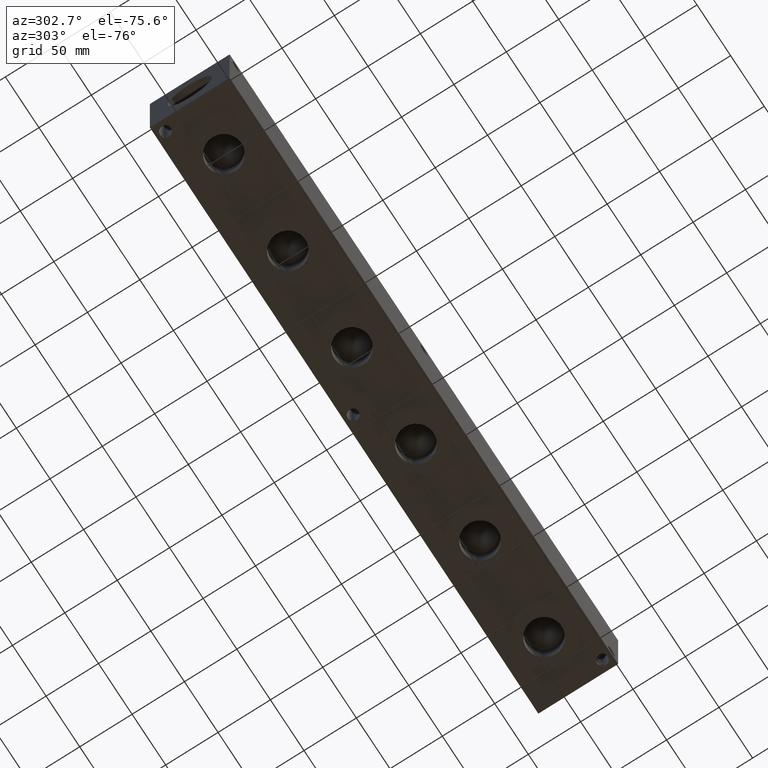
[diagram: clean part render]
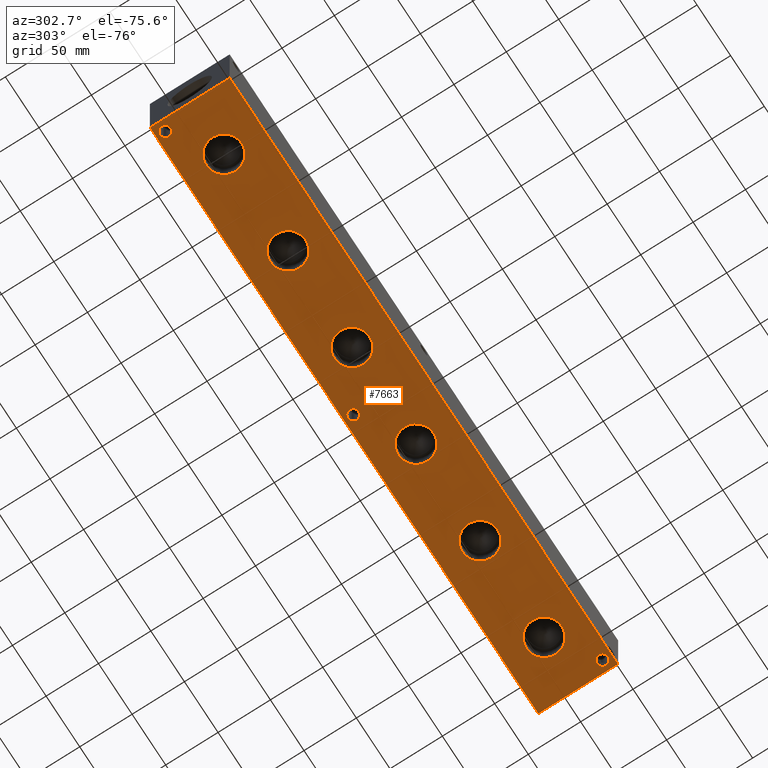
[diagram: same view with one face highlighted and labeled with its STEP entity id]
A machine part, auxiliary view. The second image highlights one B-rep face of the part: STEP entity #7663.
In plain terms, the highlighted planar face has unit normal (0, 0, 1).
Its self-contained STEP definition (entity closure, byte-faithful):
#107=CIRCLE('',#7943,5.1562);
#108=CIRCLE('',#7945,5.1562);
#109=CIRCLE('',#7947,5.1562);
#115=CIRCLE('',#7956,16.8529);
#116=CIRCLE('',#7957,16.8529);
#122=CIRCLE('',#7967,16.8529);
#123=CIRCLE('',#7968,16.8529);
#129=CIRCLE('',#7978,16.8529);
#130=CIRCLE('',#7979,16.8529);
#136=CIRCLE('',#7989,16.8529);
#137=CIRCLE('',#7990,16.8529);
#143=CIRCLE('',#8000,16.8529);
#144=CIRCLE('',#8001,16.8529);
#150=CIRCLE('',#8011,16.8529);
#151=CIRCLE('',#8012,16.8529);
#256=FACE_BOUND('',#1339,.T.);
#257=FACE_BOUND('',#1340,.T.);
#258=FACE_BOUND('',#1341,.T.);
#259=FACE_BOUND('',#1342,.T.);
#260=FACE_BOUND('',#1343,.T.);
#261=FACE_BOUND('',#1344,.T.);
#262=FACE_BOUND('',#1345,.T.);
#263=FACE_BOUND('',#1346,.T.);
#264=FACE_BOUND('',#1347,.T.);
#500=PLANE('',#8095);
#889=FACE_OUTER_BOUND('',#1338,.T.);
#1338=EDGE_LOOP('',(#6851,#6852,#6853,#6854));
#1339=EDGE_LOOP('',(#6855));
#1340=EDGE_LOOP('',(#6856));
#1341=EDGE_LOOP('',(#6857));
#1342=EDGE_LOOP('',(#6858,#6859));
#1343=EDGE_LOOP('',(#6860,#6861));
#1344=EDGE_LOOP('',(#6862,#6863));
#1345=EDGE_LOOP('',(#6864,#6865));
#1346=EDGE_LOOP('',(#6866,#6867));
#1347=EDGE_LOOP('',(#6868,#6869));
#2066=LINE('',#13090,#2792);
#2069=LINE('',#13095,#2795);
#2071=LINE('',#13099,#2797);
#2073=LINE('',#13102,#2799);
#2792=VECTOR('',#9642,10.);
#2795=VECTOR('',#9647,10.);
#2797=VECTOR('',#9651,10.);
#2799=VECTOR('',#9655,10.);
#3607=VERTEX_POINT('',#12792);
#3608=VERTEX_POINT('',#12796);
#3609=VERTEX_POINT('',#12800);
#3616=VERTEX_POINT('',#12818);
#3617=VERTEX_POINT('',#12819);
#3624=VERTEX_POINT('',#12840);
#3625=VERTEX_POINT('',#12841);
#3632=VERTEX_POINT('',#12862);
#3633=VERTEX_POINT('',#12863);
#3640=VERTEX_POINT('',#12884);
#3641=VERTEX_POINT('',#12885);
#3648=VERTEX_POINT('',#12906);
#3649=VERTEX_POINT('',#12907);
#3656=VERTEX_POINT('',#12928);
#3657=VERTEX_POINT('',#12929);
#3710=VERTEX_POINT('',#13088);
#3711=VERTEX_POINT('',#13089);
#3712=VERTEX_POINT('',#13094);
#3713=VERTEX_POINT('',#13098);
#4625=EDGE_CURVE('',#3607,#3607,#107,.T.);
#4627=EDGE_CURVE('',#3608,#3608,#108,.T.);
#4629=EDGE_CURVE('',#3609,#3609,#109,.T.);
#4636=EDGE_CURVE('',#3616,#3617,#115,.T.);
#4637=EDGE_CURVE('',#3617,#3616,#116,.T.);
#4646=EDGE_CURVE('',#3624,#3625,#122,.T.);
#4647=EDGE_CURVE('',#3625,#3624,#123,.T.);
#4656=EDGE_CURVE('',#3632,#3633,#129,.T.);
#4657=EDGE_CURVE('',#3633,#3632,#130,.T.);
#4666=EDGE_CURVE('',#3640,#3641,#136,.T.);
#4667=EDGE_CURVE('',#3641,#3640,#137,.T.);
#4676=EDGE_CURVE('',#3648,#3649,#143,.T.);
#4677=EDGE_CURVE('',#3649,#3648,#144,.T.);
#4686=EDGE_CURVE('',#3656,#3657,#150,.T.);
#4687=EDGE_CURVE('',#3657,#3656,#151,.T.);
#4758=EDGE_CURVE('',#3710,#3711,#2066,.T.);
#4761=EDGE_CURVE('',#3712,#3710,#2069,.T.);
#4763=EDGE_CURVE('',#3713,#3712,#2071,.T.);
#4765=EDGE_CURVE('',#3711,#3713,#2073,.T.);
#6851=ORIENTED_EDGE('',*,*,#4765,.F.);
#6852=ORIENTED_EDGE('',*,*,#4758,.F.);
#6853=ORIENTED_EDGE('',*,*,#4761,.F.);
#6854=ORIENTED_EDGE('',*,*,#4763,.F.);
#6855=ORIENTED_EDGE('',*,*,#4625,.T.);
#6856=ORIENTED_EDGE('',*,*,#4627,.T.);
#6857=ORIENTED_EDGE('',*,*,#4629,.T.);
#6858=ORIENTED_EDGE('',*,*,#4636,.T.);
#6859=ORIENTED_EDGE('',*,*,#4637,.T.);
#6860=ORIENTED_EDGE('',*,*,#4646,.T.);
#6861=ORIENTED_EDGE('',*,*,#4647,.T.);
#6862=ORIENTED_EDGE('',*,*,#4656,.T.);
#6863=ORIENTED_EDGE('',*,*,#4657,.T.);
#6864=ORIENTED_EDGE('',*,*,#4666,.T.);
#6865=ORIENTED_EDGE('',*,*,#4667,.T.);
#6866=ORIENTED_EDGE('',*,*,#4676,.T.);
#6867=ORIENTED_EDGE('',*,*,#4677,.T.);
#6868=ORIENTED_EDGE('',*,*,#4686,.T.);
#6869=ORIENTED_EDGE('',*,*,#4687,.T.);
#7663=ADVANCED_FACE('',(#889,#256,#257,#258,#259,#260,#261,#262,#263,#264),
#500,.F.);
#7943=AXIS2_PLACEMENT_3D('',#12794,#9302,#9303);
#7945=AXIS2_PLACEMENT_3D('',#12798,#9307,#9308);
#7947=AXIS2_PLACEMENT_3D('',#12802,#9312,#9313);
#7956=AXIS2_PLACEMENT_3D('',#12820,#9331,#9332);
#7957=AXIS2_PLACEMENT_3D('',#12821,#9333,#9334);
#7967=AXIS2_PLACEMENT_3D('',#12842,#9356,#9357);
#7968=AXIS2_PLACEMENT_3D('',#12843,#9358,#9359);
#7978=AXIS2_PLACEMENT_3D('',#12864,#9381,#9382);
#7979=AXIS2_PLACEMENT_3D('',#12865,#9383,#9384);
#7989=AXIS2_PLACEMENT_3D('',#12886,#9406,#9407);
#7990=AXIS2_PLACEMENT_3D('',#12887,#9408,#9409);
#8000=AXIS2_PLACEMENT_3D('',#12908,#9431,#9432);
#8001=AXIS2_PLACEMENT_3D('',#12909,#9433,#9434);
#8011=AXIS2_PLACEMENT_3D('',#12930,#9456,#9457);
#8012=AXIS2_PLACEMENT_3D('',#12931,#9458,#9459);
#8095=AXIS2_PLACEMENT_3D('',#13104,#9658,#9659);
#9302=DIRECTION('center_axis',(0.,0.,1.));
#9303=DIRECTION('ref_axis',(1.,0.,0.));
#9307=DIRECTION('center_axis',(0.,0.,1.));
#9308=DIRECTION('ref_axis',(1.,0.,0.));
#9312=DIRECTION('center_axis',(0.,0.,1.));
#9313=DIRECTION('ref_axis',(1.,0.,0.));
#9331=DIRECTION('center_axis',(0.,0.,1.));
#9332=DIRECTION('ref_axis',(1.,0.,0.));
#9333=DIRECTION('center_axis',(0.,0.,1.));
#9334=DIRECTION('ref_axis',(1.,0.,0.));
#9356=DIRECTION('center_axis',(0.,0.,1.));
#9357=DIRECTION('ref_axis',(1.,0.,0.));
#9358=DIRECTION('center_axis',(0.,0.,1.));
#9359=DIRECTION('ref_axis',(1.,0.,0.));
#9381=DIRECTION('center_axis',(0.,0.,1.));
#9382=DIRECTION('ref_axis',(1.,0.,0.));
#9383=DIRECTION('center_axis',(0.,0.,1.));
#9384=DIRECTION('ref_axis',(1.,0.,0.));
#9406=DIRECTION('center_axis',(0.,0.,1.));
#9407=DIRECTION('ref_axis',(1.,0.,0.));
#9408=DIRECTION('center_axis',(0.,0.,1.));
#9409=DIRECTION('ref_axis',(1.,0.,0.));
#9431=DIRECTION('center_axis',(0.,0.,1.));
#9432=DIRECTION('ref_axis',(1.,0.,0.));
#9433=DIRECTION('center_axis',(0.,0.,1.));
#9434=DIRECTION('ref_axis',(1.,0.,0.));
#9456=DIRECTION('center_axis',(0.,0.,1.));
#9457=DIRECTION('ref_axis',(1.,0.,0.));
#9458=DIRECTION('center_axis',(0.,0.,1.));
#9459=DIRECTION('ref_axis',(1.,0.,0.));
#9642=DIRECTION('',(0.,-1.,0.));
#9647=DIRECTION('',(-1.,0.,0.));
#9651=DIRECTION('',(0.,1.,0.));
#9655=DIRECTION('',(1.,0.,0.));
#9658=DIRECTION('center_axis',(0.,0.,1.));
#9659=DIRECTION('ref_axis',(1.,0.,0.));
#12792=CARTESIAN_POINT('',(563.1688,8.7376,0.));
#12794=CARTESIAN_POINT('Origin',(568.325,8.7376,0.));
#12796=CARTESIAN_POINT('',(4.3688,67.4624,0.));
#12798=CARTESIAN_POINT('Origin',(9.525,67.4624,0.));
#12800=CARTESIAN_POINT('',(283.7688,67.4624,0.));
#12802=CARTESIAN_POINT('Origin',(288.925,67.4624,0.));
#12818=CARTESIAN_POINT('',(448.6529,38.1,0.));
#12819=CARTESIAN_POINT('',(414.9471,38.1,0.));
#12820=CARTESIAN_POINT('Origin',(431.8,38.1,0.));
#12821=CARTESIAN_POINT('Origin',(431.8,38.1,0.));
#12840=CARTESIAN_POINT('',(258.1529,38.1,0.));
#12841=CARTESIAN_POINT('',(224.4471,38.1,0.));
#12842=CARTESIAN_POINT('Origin',(241.3,38.1,0.));
#12843=CARTESIAN_POINT('Origin',(241.3,38.1,0.));
#12862=CARTESIAN_POINT('',(67.6529,38.1,0.));
#12863=CARTESIAN_POINT('',(33.9471,38.1,0.));
#12864=CARTESIAN_POINT('Origin',(50.8,38.1,0.));
#12865=CARTESIAN_POINT('Origin',(50.8,38.1,0.));
#12884=CARTESIAN_POINT('',(162.9029,38.1,0.));
#12885=CARTESIAN_POINT('',(129.1971,38.1,0.));
#12886=CARTESIAN_POINT('Origin',(146.05,38.1,0.));
#12887=CARTESIAN_POINT('Origin',(146.05,38.1,0.));
#12906=CARTESIAN_POINT('',(353.4029,38.1,0.));
#12907=CARTESIAN_POINT('',(319.6971,38.1,0.));
#12908=CARTESIAN_POINT('Origin',(336.55,38.1,0.));
#12909=CARTESIAN_POINT('Origin',(336.55,38.1,0.));
#12928=CARTESIAN_POINT('',(543.9029,38.1,0.));
#12929=CARTESIAN_POINT('',(510.1971,38.1,0.));
#12930=CARTESIAN_POINT('Origin',(527.05,38.1,0.));
#12931=CARTESIAN_POINT('Origin',(527.05,38.1,0.));
#13088=CARTESIAN_POINT('',(0.,76.2,0.));
#13089=CARTESIAN_POINT('',(0.,0.,0.));
#13090=CARTESIAN_POINT('',(0.,76.2,0.));
#13094=CARTESIAN_POINT('',(577.85,76.2,0.));
#13095=CARTESIAN_POINT('',(577.85,76.2,0.));
#13098=CARTESIAN_POINT('',(577.85,0.,0.));
#13099=CARTESIAN_POINT('',(577.85,0.,0.));
#13102=CARTESIAN_POINT('',(0.,0.,0.));
#13104=CARTESIAN_POINT('Origin',(288.925,38.1,0.));